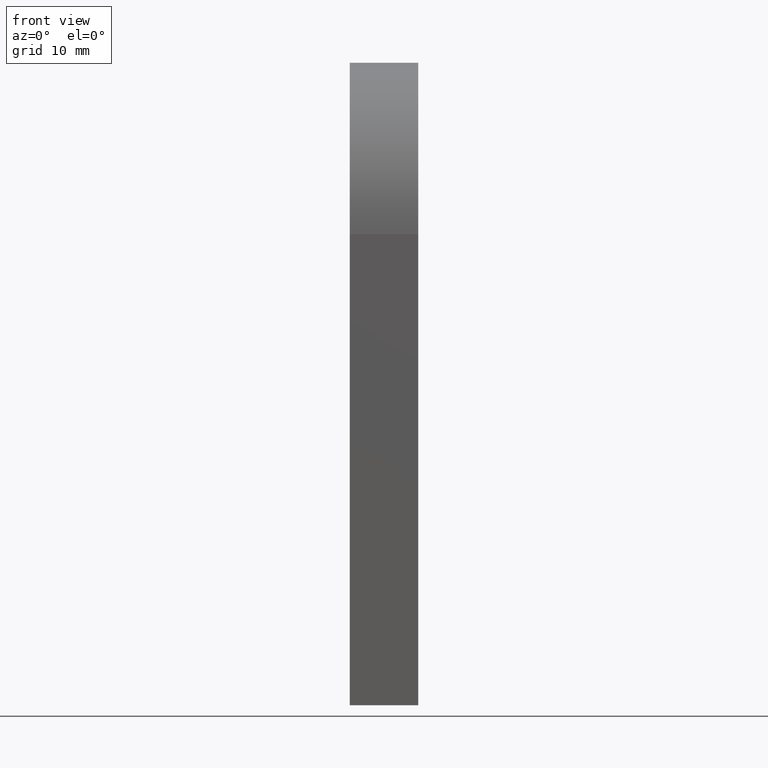
[diagram: clean part render]
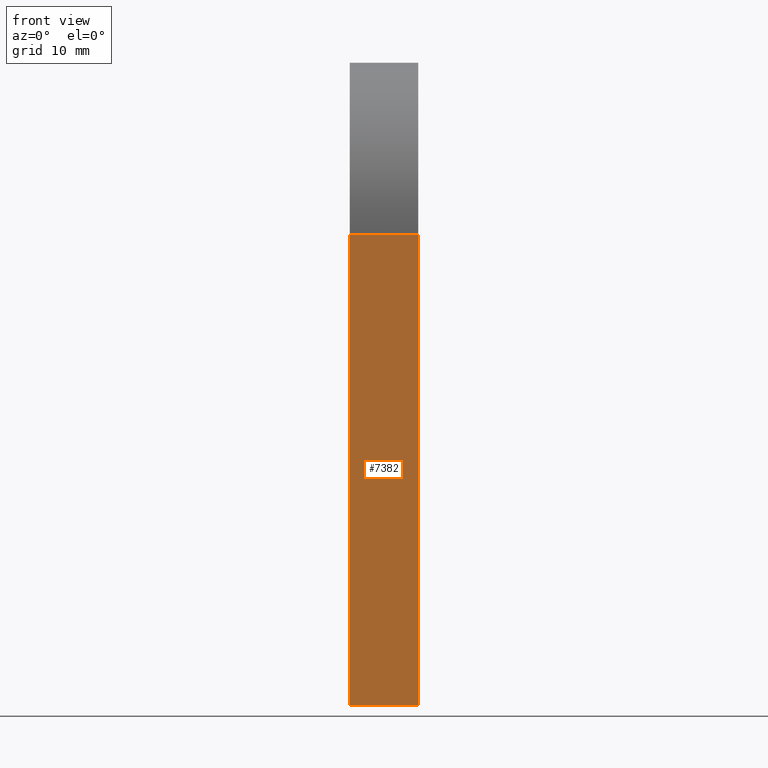
[diagram: same view with one face highlighted and labeled with its STEP entity id]
A machine part, front view. The second image highlights one B-rep face of the part: STEP entity #7382.
In plain terms, the highlighted planar face has unit normal (0, -1, 0).
Its self-contained STEP definition (entity closure, byte-faithful):
#419 = DIRECTION ( 'NONE',  ( 0.0000000000000000000, -1.000000000000000000, 4.956352788505162800E-017 ) ) ;
#2422 = ORIENTED_EDGE ( 'NONE', *, *, #5956, .T. ) ;
#2904 = LINE ( 'NONE', #9731, #11271 ) ;
#2914 = ORIENTED_EDGE ( 'NONE', *, *, #9119, .T. ) ;
#2977 = DIRECTION ( 'NONE',  ( -1.000000000000000000, -0.0000000000000000000, -0.0000000000000000000 ) ) ;
#3048 = CARTESIAN_POINT ( 'NONE',  ( -3.000000000000000000, -15.00000000000000000, -6.218678295957995600 ) ) ;
#3226 = CARTESIAN_POINT ( 'NONE',  ( -3.000000000000000000, -15.00000000000000000, -6.218678295957999100 ) ) ;
#3933 = FACE_OUTER_BOUND ( 'NONE', #5342, .T. ) ;
#3969 = DIRECTION ( 'NONE',  ( 0.0000000000000000000, 4.956352788505163400E-017, 1.000000000000000000 ) ) ;
#3979 = VERTEX_POINT ( 'NONE', #5703 ) ;
#4388 = LINE ( 'NONE', #10156, #8637 ) ;
#4800 = CARTESIAN_POINT ( 'NONE',  ( 3.000000000000000000, -14.99999999999999800, 34.99999999999999300 ) ) ;
#5055 = VERTEX_POINT ( 'NONE', #5674 ) ;
#5342 = EDGE_LOOP ( 'NONE', ( #2422, #7011, #2914, #11886 ) ) ;
#5635 = VERTEX_POINT ( 'NONE', #4800 ) ;
#5674 = CARTESIAN_POINT ( 'NONE',  ( 3.000000000000000000, -15.00000000000000000, -6.218678295957995600 ) ) ;
#5703 = CARTESIAN_POINT ( 'NONE',  ( -3.000000000000000000, -14.99999999999999800, 34.99999999999999300 ) ) ;
#5956 = EDGE_CURVE ( 'NONE', #12482, #5055, #7751, .T. ) ;
#6404 = AXIS2_PLACEMENT_3D ( 'NONE', #7460, #419, #11621 ) ;
#6548 = PLANE ( 'NONE',  #6404 ) ;
#7011 = ORIENTED_EDGE ( 'NONE', *, *, #12993, .T. ) ;
#7161 = CARTESIAN_POINT ( 'NONE',  ( -3.000000000000000000, -15.00000000000000000, -3.061616997868383000E-015 ) ) ;
#7382 = ADVANCED_FACE ( 'NONE', ( #3933 ), #6548, .T. ) ;
#7460 = CARTESIAN_POINT ( 'NONE',  ( 3.000000000000000000, -15.00000000000000000, -3.061616997868383000E-015 ) ) ;
#7751 = LINE ( 'NONE', #3048, #10604 ) ;
#8000 = VECTOR ( 'NONE', #3969, 1000.000000000000000 ) ;
#8637 = VECTOR ( 'NONE', #2977, 1000.000000000000000 ) ;
#9119 = EDGE_CURVE ( 'NONE', #5635, #3979, #4388, .T. ) ;
#9564 = EDGE_CURVE ( 'NONE', #12482, #3979, #12421, .T. ) ;
#9731 = CARTESIAN_POINT ( 'NONE',  ( 3.000000000000000000, -15.00000000000000000, -3.061616997868383000E-015 ) ) ;
#10134 = DIRECTION ( 'NONE',  ( 1.000000000000000000, -0.0000000000000000000, -0.0000000000000000000 ) ) ;
#10156 = CARTESIAN_POINT ( 'NONE',  ( 3.000000000000000000, -14.99999999999999800, 34.99999999999999300 ) ) ;
#10604 = VECTOR ( 'NONE', #10134, 1000.000000000000000 ) ;
#11271 = VECTOR ( 'NONE', #11721, 1000.000000000000000 ) ;
#11621 = DIRECTION ( 'NONE',  ( 0.0000000000000000000, -4.956352788505162800E-017, -1.000000000000000000 ) ) ;
#11721 = DIRECTION ( 'NONE',  ( 0.0000000000000000000, 4.956352788505163400E-017, 1.000000000000000000 ) ) ;
#11886 = ORIENTED_EDGE ( 'NONE', *, *, #9564, .F. ) ;
#12421 = LINE ( 'NONE', #7161, #8000 ) ;
#12482 = VERTEX_POINT ( 'NONE', #3226 ) ;
#12993 = EDGE_CURVE ( 'NONE', #5055, #5635, #2904, .T. ) ;